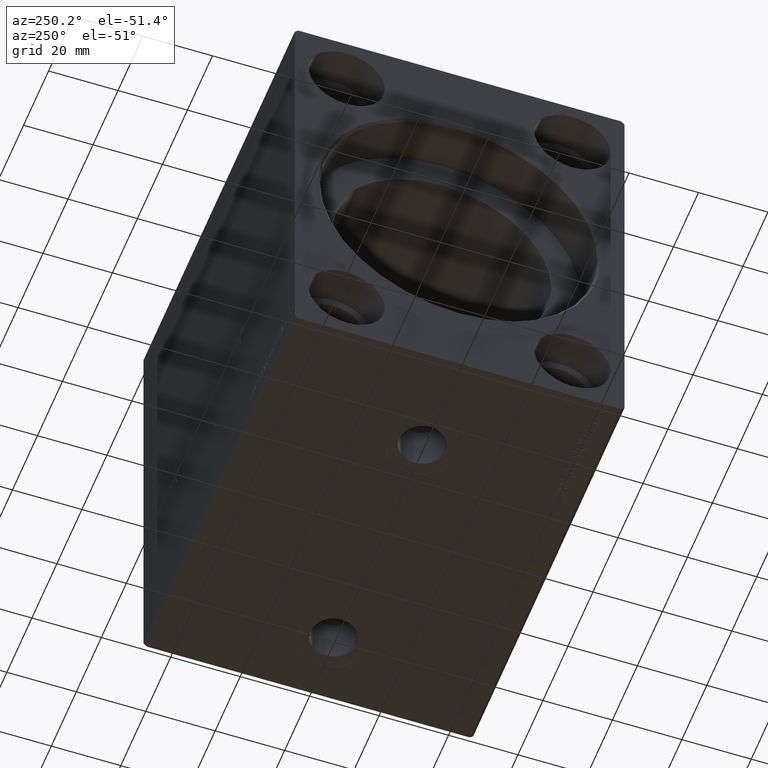
[diagram: clean part render]
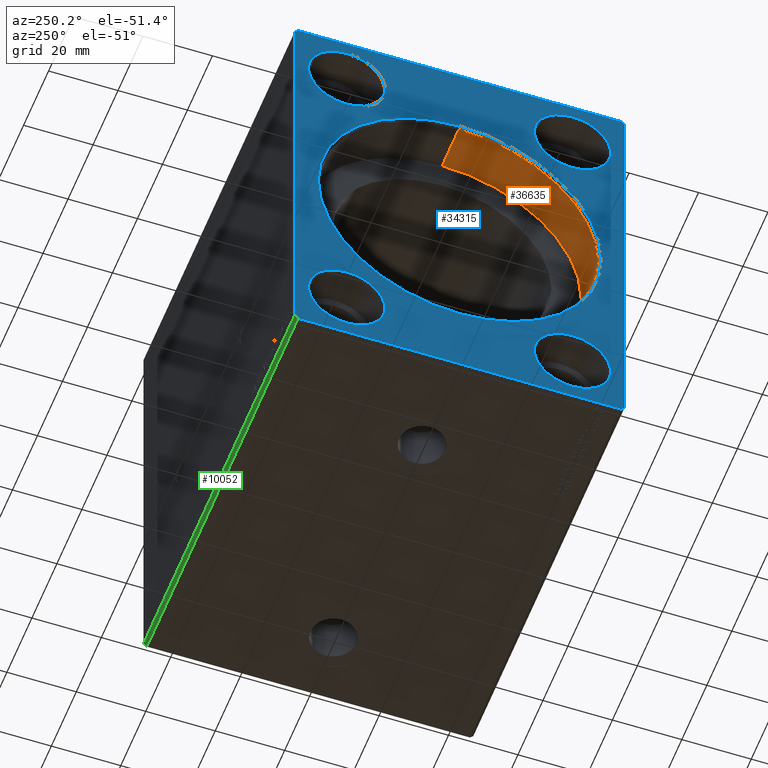
[diagram: same view with three faces highlighted in distinct colors, each labeled with its STEP entity id]
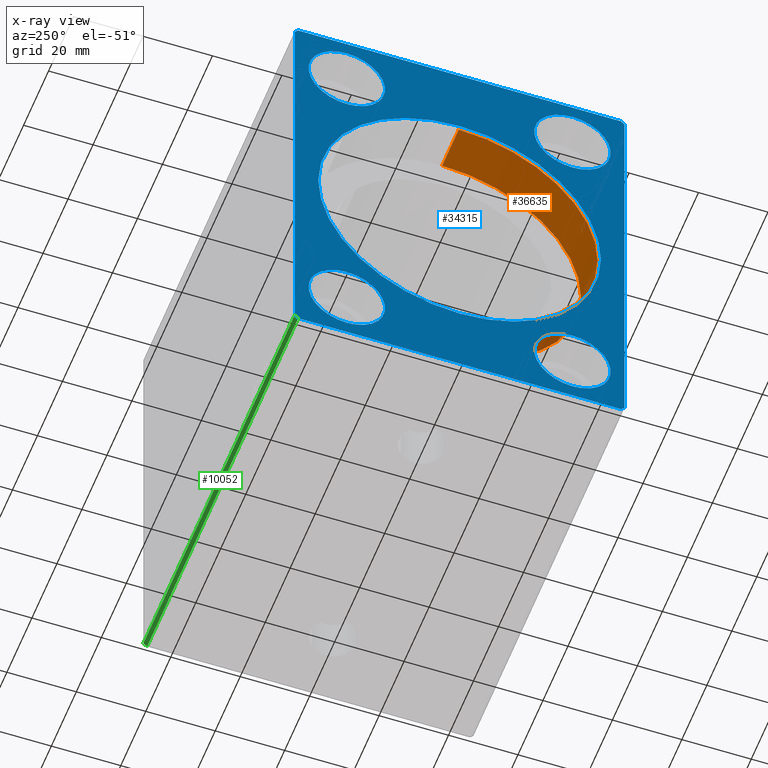
[diagram: x-ray of the same camera — body ghosted, the three highlighted faces saturated]
A machine part, auxiliary view with three faces highlighted in distinct colors.
The next image is the same camera in x-ray (body ghosted, the three faces saturated) — at least one of them is partly hidden behind the body in this view.
Their STEP definitions:

[orange] entity #36635 — the highlighted cylindrical surface (partial cylindrical patch) has radius 40 mm, axis along (-1, -0, -0).
#2499 = CARTESIAN_POINT ( 'NONE',  ( 0.7000000000000130562, 0.000000000000000000, 40.00000000000000000 ) ) ;
#3396 = CIRCLE ( 'NONE', #8219, 40.00000000000000000 ) ;
#3567 = DIRECTION ( 'NONE',  ( 0.000000000000000000, 0.000000000000000000, 1.000000000000000000 ) ) ;
#4432 = DIRECTION ( 'NONE',  ( -1.000000000000000000, 0.000000000000000000, 0.000000000000000000 ) ) ;
#5234 = ORIENTED_EDGE ( 'NONE', *, *, #10149, .T. ) ;
#8219 = AXIS2_PLACEMENT_3D ( 'NONE', #19178, #15964, #23042 ) ;
#10149 = EDGE_CURVE ( 'NONE', #22025, #37024, #39539, .T. ) ;
#10596 = VERTEX_POINT ( 'NONE', #2499 ) ;
#10897 = EDGE_CURVE ( 'NONE', #26904, #10596, #41941, .T. ) ;
#13151 = ORIENTED_EDGE ( 'NONE', *, *, #10897, .F. ) ;
#15964 = DIRECTION ( 'NONE',  ( -1.000000000000000000, 0.000000000000000000, 0.000000000000000000 ) ) ;
#16160 = CARTESIAN_POINT ( 'NONE',  ( 14.00000000000000000, 0.000000000000000000, 40.00000000000000000 ) ) ;
#16341 = CARTESIAN_POINT ( 'NONE',  ( 14.00000000000000000, 4.898587196589413026E-15, -40.00000000000000000 ) ) ;
#16883 = FACE_OUTER_BOUND ( 'NONE', #39180, .T. ) ;
#18106 = CARTESIAN_POINT ( 'NONE',  ( 14.00000000000000000, 4.898587196589413026E-15, -40.00000000000000000 ) ) ;
#19178 = CARTESIAN_POINT ( 'NONE',  ( 14.00000000000000000, 0.000000000000000000, 0.000000000000000000 ) ) ;
#19324 = VECTOR ( 'NONE', #29260, 1000.000000000000000 ) ;
#19640 = CARTESIAN_POINT ( 'NONE',  ( 0.7000000000000130562, 4.898587196589413026E-15, -40.00000000000000000 ) ) ;
#20111 = CARTESIAN_POINT ( 'NONE',  ( 14.00000000000000000, 0.000000000000000000, 0.000000000000000000 ) ) ;
#20319 = CYLINDRICAL_SURFACE ( 'NONE', #41902, 40.00000000000000000 ) ;
#22025 = VERTEX_POINT ( 'NONE', #18106 ) ;
#22026 = VECTOR ( 'NONE', #36735, 1000.000000000000000 ) ;
#22105 = ORIENTED_EDGE ( 'NONE', *, *, #40852, .T. ) ;
#23042 = DIRECTION ( 'NONE',  ( 0.000000000000000000, 0.000000000000000000, 1.000000000000000000 ) ) ;
#23564 = CARTESIAN_POINT ( 'NONE',  ( 0.7000000000000130562, 0.000000000000000000, 0.000000000000000000 ) ) ;
#26756 = DIRECTION ( 'NONE',  ( -1.000000000000000000, -0.000000000000000000, -0.000000000000000000 ) ) ;
#26794 = CIRCLE ( 'NONE', #40511, 40.00000000000000000 ) ;
#26904 = VERTEX_POINT ( 'NONE', #39049 ) ;
#27198 = DIRECTION ( 'NONE',  ( 0.000000000000000000, 0.000000000000000000, -1.000000000000000000 ) ) ;
#29260 = DIRECTION ( 'NONE',  ( -1.000000000000000000, -0.000000000000000000, -0.000000000000000000 ) ) ;
#32843 = ORIENTED_EDGE ( 'NONE', *, *, #38093, .F. ) ;
#36635 = ADVANCED_FACE ( 'NONE', ( #16883 ), #20319, .F. ) ;
#36735 = DIRECTION ( 'NONE',  ( -1.000000000000000000, -0.000000000000000000, -0.000000000000000000 ) ) ;
#37024 = VERTEX_POINT ( 'NONE', #19640 ) ;
#38093 = EDGE_CURVE ( 'NONE', #22025, #26904, #3396, .T. ) ;
#39049 = CARTESIAN_POINT ( 'NONE',  ( 14.00000000000000000, 0.000000000000000000, 40.00000000000000000 ) ) ;
#39180 = EDGE_LOOP ( 'NONE', ( #32843, #5234, #22105, #13151 ) ) ;
#39539 = LINE ( 'NONE', #16341, #22026 ) ;
#40511 = AXIS2_PLACEMENT_3D ( 'NONE', #23564, #4432, #27198 ) ;
#40852 = EDGE_CURVE ( 'NONE', #37024, #10596, #26794, .T. ) ;
#41902 = AXIS2_PLACEMENT_3D ( 'NONE', #20111, #26756, #3567 ) ;
#41941 = LINE ( 'NONE', #16160, #19324 ) ;

[blue] entity #34315 — the highlighted planar face has unit normal (1, 0, 0).
#11 = ORIENTED_EDGE ( 'NONE', *, *, #10098, .T. ) ;
#48 = CIRCLE ( 'NONE', #28796, 10.99999999999999645 ) ;
#254 = LINE ( 'NONE', #22599, #31197 ) ;
#302 = CARTESIAN_POINT ( 'NONE',  ( 0.000000000000000000, -32.50000000000000000, -47.50000000000000000 ) ) ;
#457 = CIRCLE ( 'NONE', #40934, 40.70000000000001705 ) ;
#639 = CARTESIAN_POINT ( 'NONE',  ( 0.000000000000000000, 0.000000000000000000, 0.000000000000000000 ) ) ;
#1202 = VERTEX_POINT ( 'NONE', #32576 ) ;
#1806 = ORIENTED_EDGE ( 'NONE', *, *, #31559, .F. ) ;
#1816 = CARTESIAN_POINT ( 'NONE',  ( 0.000000000000000000, 0.000000000000000000, 0.000000000000000000 ) ) ;
#1925 = CARTESIAN_POINT ( 'NONE',  ( 0.000000000000000000, -47.49999999999999289, -61.50000000000001421 ) ) ;
#1927 = ORIENTED_EDGE ( 'NONE', *, *, #24521, .F. ) ;
#2454 = VERTEX_POINT ( 'NONE', #7151 ) ;
#2473 = LINE ( 'NONE', #38350, #15266 ) ;
#2591 = CARTESIAN_POINT ( 'NONE',  ( 0.000000000000000000, -46.50000000000001421, 62.49999999999997868 ) ) ;
#2634 = LINE ( 'NONE', #11882, #31567 ) ;
#2798 = AXIS2_PLACEMENT_3D ( 'NONE', #18849, #41824, #38609 ) ;
#2817 = EDGE_CURVE ( 'NONE', #14991, #35058, #34230, .T. ) ;
#3081 = CARTESIAN_POINT ( 'NONE',  ( 0.000000000000000000, 46.50000000000000000, 62.49999999999998579 ) ) ;
#3225 = FACE_BOUND ( 'NONE', #9567, .T. ) ;
#3333 = EDGE_CURVE ( 'NONE', #29966, #10995, #2634, .T. ) ;
#3859 = FACE_BOUND ( 'NONE', #9616, .T. ) ;
#3888 = CARTESIAN_POINT ( 'NONE',  ( 0.000000000000000000, 47.50000000000001421, -61.50000000000001421 ) ) ;
#4020 = EDGE_CURVE ( 'NONE', #4409, #29110, #36666, .T. ) ;
#4409 = VERTEX_POINT ( 'NONE', #2591 ) ;
#5026 = AXIS2_PLACEMENT_3D ( 'NONE', #302, #32955, #42200 ) ;
#6453 = PLANE ( 'NONE',  #28636 ) ;
#6943 = VERTEX_POINT ( 'NONE', #9321 ) ;
#6946 = DIRECTION ( 'NONE',  ( 0.000000000000000000, 0.000000000000000000, -1.000000000000000000 ) ) ;
#6988 = EDGE_CURVE ( 'NONE', #35058, #14991, #17124, .T. ) ;
#7082 = FACE_BOUND ( 'NONE', #22590, .T. ) ;
#7138 = AXIS2_PLACEMENT_3D ( 'NONE', #39600, #36373, #26485 ) ;
#7151 = CARTESIAN_POINT ( 'NONE',  ( 0.000000000000000000, -46.50000000000000000, -62.50000000000001421 ) ) ;
#7218 = ORIENTED_EDGE ( 'NONE', *, *, #29298, .F. ) ;
#7430 = CARTESIAN_POINT ( 'NONE',  ( 0.000000000000000000, 47.50000000000001421, -61.50000000000001421 ) ) ;
#7691 = CARTESIAN_POINT ( 'NONE',  ( 0.000000000000000000, 0.000000000000000000, 40.70000000000001705 ) ) ;
#8057 = EDGE_CURVE ( 'NONE', #16515, #8357, #13061, .T. ) ;
#8357 = VERTEX_POINT ( 'NONE', #36977 ) ;
#8439 = CARTESIAN_POINT ( 'NONE',  ( 0.000000000000000000, -32.50000000000000000, 58.50000000000000000 ) ) ;
#8671 = VERTEX_POINT ( 'NONE', #35669 ) ;
#8917 = CARTESIAN_POINT ( 'NONE',  ( 0.000000000000000000, 47.50000000000000000, 61.49999999999998579 ) ) ;
#9167 = DIRECTION ( 'NONE',  ( 0.000000000000000000, -0.7071067811865474617, 0.7071067811865474617 ) ) ;
#9267 = ORIENTED_EDGE ( 'NONE', *, *, #31998, .T. ) ;
#9321 = CARTESIAN_POINT ( 'NONE',  ( 0.000000000000000000, -47.49999999999999289, -61.50000000000001421 ) ) ;
#9377 = CARTESIAN_POINT ( 'NONE',  ( 0.000000000000000000, 32.50000000000000000, 36.50000000000000711 ) ) ;
#9567 = EDGE_LOOP ( 'NONE', ( #28337, #21479 ) ) ;
#9609 = CARTESIAN_POINT ( 'NONE',  ( 0.000000000000000000, 46.50000000000000000, -62.50000000000000000 ) ) ;
#9616 = EDGE_LOOP ( 'NONE', ( #37590, #31442 ) ) ;
#9732 = VERTEX_POINT ( 'NONE', #35158 ) ;
#10098 = EDGE_CURVE ( 'NONE', #33511, #34052, #37099, .T. ) ;
#10995 = VERTEX_POINT ( 'NONE', #3888 ) ;
#11382 = LINE ( 'NONE', #1925, #13333 ) ;
#11882 = CARTESIAN_POINT ( 'NONE',  ( 0.000000000000000000, 46.50000000000000000, -62.50000000000000000 ) ) ;
#12391 = CIRCLE ( 'NONE', #2798, 10.99999999999999645 ) ;
#12567 = DIRECTION ( 'NONE',  ( 0.000000000000000000, 1.000000000000000000, 1.492235248152092278E-16 ) ) ;
#12904 = DIRECTION ( 'NONE',  ( 0.000000000000000000, 0.000000000000000000, -1.000000000000000000 ) ) ;
#13061 = CIRCLE ( 'NONE', #24708, 10.99999999999999645 ) ;
#13178 = CARTESIAN_POINT ( 'NONE',  ( 0.000000000000000000, -32.50000000000000000, 47.50000000000000000 ) ) ;
#13333 = VECTOR ( 'NONE', #24483, 1000.000000000000114 ) ;
#14991 = VERTEX_POINT ( 'NONE', #8439 ) ;
#15266 = VECTOR ( 'NONE', #12567, 1000.000000000000000 ) ;
#15530 = DIRECTION ( 'NONE',  ( 0.000000000000000000, 0.7071067811865574537, 0.7071067811865376918 ) ) ;
#15633 = EDGE_CURVE ( 'NONE', #2454, #29966, #2473, .T. ) ;
#16403 = DIRECTION ( 'NONE',  ( -1.000000000000000000, 0.000000000000000000, 0.000000000000000000 ) ) ;
#16482 = LINE ( 'NONE', #7430, #33338 ) ;
#16515 = VERTEX_POINT ( 'NONE', #9377 ) ;
#16580 = CARTESIAN_POINT ( 'NONE',  ( 0.000000000000000000, 46.50000000000000000, 62.49999999999998579 ) ) ;
#16902 = DIRECTION ( 'NONE',  ( 0.000000000000000000, -0.7071067811865474617, -0.7071067811865474617 ) ) ;
#16930 = EDGE_CURVE ( 'NONE', #33807, #8671, #20112, .T. ) ;
#16964 = FACE_BOUND ( 'NONE', #39760, .T. ) ;
#17124 = CIRCLE ( 'NONE', #39808, 10.99999999999999645 ) ;
#17189 = ORIENTED_EDGE ( 'NONE', *, *, #36593, .T. ) ;
#17500 = AXIS2_PLACEMENT_3D ( 'NONE', #30118, #36156, #20453 ) ;
#18648 = CARTESIAN_POINT ( 'NONE',  ( 0.000000000000000000, -47.50000000000001421, 61.49999999999997868 ) ) ;
#18849 = CARTESIAN_POINT ( 'NONE',  ( 0.000000000000000000, 32.50000000000000000, 47.50000000000000000 ) ) ;
#19268 = VECTOR ( 'NONE', #20224, 1000.000000000000000 ) ;
#19912 = CARTESIAN_POINT ( 'NONE',  ( 0.000000000000000000, -32.50000000000000000, -36.50000000000000711 ) ) ;
#20112 = CIRCLE ( 'NONE', #5026, 10.99999999999999645 ) ;
#20224 = DIRECTION ( 'NONE',  ( 0.000000000000000000, -1.000000000000000000, -7.461176240760460157E-17 ) ) ;
#20453 = DIRECTION ( 'NONE',  ( 0.000000000000000000, 0.000000000000000000, -1.000000000000000000 ) ) ;
#21479 = ORIENTED_EDGE ( 'NONE', *, *, #27453, .T. ) ;
#21774 = ORIENTED_EDGE ( 'NONE', *, *, #4020, .F. ) ;
#22504 = DIRECTION ( 'NONE',  ( -1.000000000000000000, 0.000000000000000000, 0.000000000000000000 ) ) ;
#22590 = EDGE_LOOP ( 'NONE', ( #11, #9267 ) ) ;
#22599 = CARTESIAN_POINT ( 'NONE',  ( 0.000000000000000000, -47.50000000000001421, 61.49999999999997868 ) ) ;
#22799 = DIRECTION ( 'NONE',  ( 1.000000000000000000, -0.000000000000000000, -0.000000000000000000 ) ) ;
#23310 = ORIENTED_EDGE ( 'NONE', *, *, #25039, .F. ) ;
#23857 = EDGE_CURVE ( 'NONE', #9732, #1202, #25658, .T. ) ;
#24483 = DIRECTION ( 'NONE',  ( 0.000000000000000000, 0.7071067811865451302, -0.7071067811865500152 ) ) ;
#24521 = EDGE_CURVE ( 'NONE', #6943, #2454, #11382, .T. ) ;
#24708 = AXIS2_PLACEMENT_3D ( 'NONE', #41704, #22799, #42345 ) ;
#25039 = EDGE_CURVE ( 'NONE', #29110, #6943, #254, .T. ) ;
#25658 = CIRCLE ( 'NONE', #7138, 10.99999999999999645 ) ;
#26351 = DIRECTION ( 'NONE',  ( 0.000000000000000000, -1.128275431529630729E-16, 1.000000000000000000 ) ) ;
#26485 = DIRECTION ( 'NONE',  ( 0.000000000000000000, 0.000000000000000000, 1.000000000000000000 ) ) ;
#26489 = DIRECTION ( 'NONE',  ( 0.000000000000000000, 0.000000000000000000, 1.000000000000000000 ) ) ;
#26561 = CARTESIAN_POINT ( 'NONE',  ( 0.000000000000000000, -46.50000000000001421, 62.49999999999997868 ) ) ;
#26874 = LINE ( 'NONE', #16580, #19268 ) ;
#27298 = ORIENTED_EDGE ( 'NONE', *, *, #15633, .F. ) ;
#27453 = EDGE_CURVE ( 'NONE', #8671, #33807, #35366, .T. ) ;
#27546 = EDGE_LOOP ( 'NONE', ( #1806, #7218, #35575, #27298, #1927, #23310, #21774, #32281 ) ) ;
#27860 = VECTOR ( 'NONE', #9167, 1000.000000000000114 ) ;
#28337 = ORIENTED_EDGE ( 'NONE', *, *, #16930, .T. ) ;
#28636 = AXIS2_PLACEMENT_3D ( 'NONE', #639, #36728, #36303 ) ;
#28796 = AXIS2_PLACEMENT_3D ( 'NONE', #38830, #22504, #35605 ) ;
#29110 = VERTEX_POINT ( 'NONE', #18648 ) ;
#29254 = DIRECTION ( 'NONE',  ( 0.000000000000000000, 1.692413147294445970E-16, -1.000000000000000000 ) ) ;
#29298 = EDGE_CURVE ( 'NONE', #10995, #37657, #16482, .T. ) ;
#29966 = VERTEX_POINT ( 'NONE', #9609 ) ;
#30064 = FACE_BOUND ( 'NONE', #31299, .T. ) ;
#30118 = CARTESIAN_POINT ( 'NONE',  ( 0.000000000000000000, -32.50000000000000000, -47.50000000000000000 ) ) ;
#30789 = AXIS2_PLACEMENT_3D ( 'NONE', #39087, #32648, #35874 ) ;
#31197 = VECTOR ( 'NONE', #29254, 1000.000000000000000 ) ;
#31254 = DIRECTION ( 'NONE',  ( 1.000000000000000000, 0.000000000000000000, 0.000000000000000000 ) ) ;
#31299 = EDGE_LOOP ( 'NONE', ( #17189, #40924 ) ) ;
#31442 = ORIENTED_EDGE ( 'NONE', *, *, #6988, .F. ) ;
#31559 = EDGE_CURVE ( 'NONE', #37657, #34717, #37975, .T. ) ;
#31567 = VECTOR ( 'NONE', #15530, 999.9999999999998863 ) ;
#31998 = EDGE_CURVE ( 'NONE', #34052, #33511, #457, .T. ) ;
#32281 = ORIENTED_EDGE ( 'NONE', *, *, #37219, .F. ) ;
#32576 = CARTESIAN_POINT ( 'NONE',  ( 0.000000000000000000, 32.50000000000000000, -36.50000000000000711 ) ) ;
#32648 = DIRECTION ( 'NONE',  ( -1.000000000000000000, 0.000000000000000000, 0.000000000000000000 ) ) ;
#32955 = DIRECTION ( 'NONE',  ( 1.000000000000000000, -0.000000000000000000, -0.000000000000000000 ) ) ;
#32975 = ORIENTED_EDGE ( 'NONE', *, *, #37431, .F. ) ;
#33338 = VECTOR ( 'NONE', #26351, 1000.000000000000000 ) ;
#33511 = VERTEX_POINT ( 'NONE', #7691 ) ;
#33807 = VERTEX_POINT ( 'NONE', #19912 ) ;
#34052 = VERTEX_POINT ( 'NONE', #35987 ) ;
#34230 = CIRCLE ( 'NONE', #30789, 10.99999999999999645 ) ;
#34315 = ADVANCED_FACE ( 'NONE', ( #3859, #16964, #7082, #39325, #3225, #30064 ), #6453, .F. ) ;
#34542 = CARTESIAN_POINT ( 'NONE',  ( 0.000000000000000000, 47.50000000000000000, 61.49999999999998579 ) ) ;
#34607 = ORIENTED_EDGE ( 'NONE', *, *, #23857, .F. ) ;
#34717 = VERTEX_POINT ( 'NONE', #3081 ) ;
#35058 = VERTEX_POINT ( 'NONE', #40377 ) ;
#35059 = AXIS2_PLACEMENT_3D ( 'NONE', #1816, #31254, #12904 ) ;
#35158 = CARTESIAN_POINT ( 'NONE',  ( 0.000000000000000000, 32.50000000000000000, -58.50000000000000000 ) ) ;
#35366 = CIRCLE ( 'NONE', #17500, 10.99999999999999645 ) ;
#35575 = ORIENTED_EDGE ( 'NONE', *, *, #3333, .F. ) ;
#35605 = DIRECTION ( 'NONE',  ( 0.000000000000000000, 0.000000000000000000, 1.000000000000000000 ) ) ;
#35669 = CARTESIAN_POINT ( 'NONE',  ( 0.000000000000000000, -32.50000000000000000, -58.50000000000000000 ) ) ;
#35757 = DIRECTION ( 'NONE',  ( 1.000000000000000000, 0.000000000000000000, 0.000000000000000000 ) ) ;
#35874 = DIRECTION ( 'NONE',  ( 0.000000000000000000, 0.000000000000000000, 1.000000000000000000 ) ) ;
#35987 = CARTESIAN_POINT ( 'NONE',  ( 0.000000000000000000, 4.984312472529728892E-15, -40.70000000000001705 ) ) ;
#36156 = DIRECTION ( 'NONE',  ( 1.000000000000000000, -0.000000000000000000, -0.000000000000000000 ) ) ;
#36303 = DIRECTION ( 'NONE',  ( 0.000000000000000000, 0.000000000000000000, -1.000000000000000000 ) ) ;
#36373 = DIRECTION ( 'NONE',  ( -1.000000000000000000, 0.000000000000000000, 0.000000000000000000 ) ) ;
#36593 = EDGE_CURVE ( 'NONE', #8357, #16515, #12391, .T. ) ;
#36666 = LINE ( 'NONE', #26561, #41098 ) ;
#36728 = DIRECTION ( 'NONE',  ( 1.000000000000000000, 0.000000000000000000, 0.000000000000000000 ) ) ;
#36977 = CARTESIAN_POINT ( 'NONE',  ( 0.000000000000000000, 32.50000000000000000, 58.50000000000000000 ) ) ;
#37099 = CIRCLE ( 'NONE', #35059, 40.70000000000001705 ) ;
#37219 = EDGE_CURVE ( 'NONE', #34717, #4409, #26874, .T. ) ;
#37431 = EDGE_CURVE ( 'NONE', #1202, #9732, #48, .T. ) ;
#37590 = ORIENTED_EDGE ( 'NONE', *, *, #2817, .F. ) ;
#37657 = VERTEX_POINT ( 'NONE', #8917 ) ;
#37975 = LINE ( 'NONE', #34542, #27860 ) ;
#38350 = CARTESIAN_POINT ( 'NONE',  ( 0.000000000000000000, -46.50000000000000000, -62.50000000000001421 ) ) ;
#38609 = DIRECTION ( 'NONE',  ( 0.000000000000000000, 0.000000000000000000, -1.000000000000000000 ) ) ;
#38830 = CARTESIAN_POINT ( 'NONE',  ( 0.000000000000000000, 32.50000000000000000, -47.50000000000000000 ) ) ;
#38974 = CARTESIAN_POINT ( 'NONE',  ( 0.000000000000000000, 0.000000000000000000, 0.000000000000000000 ) ) ;
#39087 = CARTESIAN_POINT ( 'NONE',  ( 0.000000000000000000, -32.50000000000000000, 47.50000000000000000 ) ) ;
#39325 = FACE_OUTER_BOUND ( 'NONE', #27546, .T. ) ;
#39600 = CARTESIAN_POINT ( 'NONE',  ( 0.000000000000000000, 32.50000000000000000, -47.50000000000000000 ) ) ;
#39760 = EDGE_LOOP ( 'NONE', ( #32975, #34607 ) ) ;
#39808 = AXIS2_PLACEMENT_3D ( 'NONE', #13178, #16403, #26489 ) ;
#40377 = CARTESIAN_POINT ( 'NONE',  ( 0.000000000000000000, -32.50000000000000000, 36.50000000000000711 ) ) ;
#40924 = ORIENTED_EDGE ( 'NONE', *, *, #8057, .T. ) ;
#40934 = AXIS2_PLACEMENT_3D ( 'NONE', #38974, #35757, #6946 ) ;
#41098 = VECTOR ( 'NONE', #16902, 1000.000000000000114 ) ;
#41704 = CARTESIAN_POINT ( 'NONE',  ( 0.000000000000000000, 32.50000000000000000, 47.50000000000000000 ) ) ;
#41824 = DIRECTION ( 'NONE',  ( 1.000000000000000000, -0.000000000000000000, -0.000000000000000000 ) ) ;
#42200 = DIRECTION ( 'NONE',  ( 0.000000000000000000, 0.000000000000000000, -1.000000000000000000 ) ) ;
#42345 = DIRECTION ( 'NONE',  ( 0.000000000000000000, 0.000000000000000000, -1.000000000000000000 ) ) ;

[green] entity #10052 — the highlighted planar face has unit normal (0, -0.7071, 0.7071).
#2634 = LINE ( 'NONE', #11882, #31567 ) ;
#3333 = EDGE_CURVE ( 'NONE', #29966, #10995, #2634, .T. ) ;
#3888 = CARTESIAN_POINT ( 'NONE',  ( 0.000000000000000000, 47.50000000000001421, -61.50000000000001421 ) ) ;
#4297 = EDGE_LOOP ( 'NONE', ( #24913, #24223, #36762, #27434 ) ) ;
#4411 = EDGE_CURVE ( 'NONE', #39540, #10995, #35469, .T. ) ;
#6583 = LINE ( 'NONE', #13873, #21324 ) ;
#6617 = CARTESIAN_POINT ( 'NONE',  ( 121.0000000000000000, 46.50000000000000000, -62.50000000000000000 ) ) ;
#9609 = CARTESIAN_POINT ( 'NONE',  ( 0.000000000000000000, 46.50000000000000000, -62.50000000000000000 ) ) ;
#10052 = ADVANCED_FACE ( 'NONE', ( #11044 ), #30814, .F. ) ;
#10995 = VERTEX_POINT ( 'NONE', #3888 ) ;
#11044 = FACE_OUTER_BOUND ( 'NONE', #4297, .T. ) ;
#11266 = DIRECTION ( 'NONE',  ( 0.000000000000000000, -0.7071067811865573427, -0.7071067811865378028 ) ) ;
#11714 = AXIS2_PLACEMENT_3D ( 'NONE', #14488, #20502, #11266 ) ;
#11882 = CARTESIAN_POINT ( 'NONE',  ( 0.000000000000000000, 46.50000000000000000, -62.50000000000000000 ) ) ;
#12253 = CARTESIAN_POINT ( 'NONE',  ( 121.0000000000000000, 47.50000000000001421, -61.50000000000001421 ) ) ;
#13740 = LINE ( 'NONE', #32878, #26480 ) ;
#13873 = CARTESIAN_POINT ( 'NONE',  ( 121.0000000000000000, 46.50000000000000000, -62.50000000000000000 ) ) ;
#14488 = CARTESIAN_POINT ( 'NONE',  ( 121.0000000000000000, 46.50000000000000000, -62.50000000000000000 ) ) ;
#15530 = DIRECTION ( 'NONE',  ( 0.000000000000000000, 0.7071067811865574537, 0.7071067811865376918 ) ) ;
#18922 = DIRECTION ( 'NONE',  ( -1.000000000000000000, -0.000000000000000000, -0.000000000000000000 ) ) ;
#20502 = DIRECTION ( 'NONE',  ( 0.000000000000000000, -0.7071067811865378028, 0.7071067811865573427 ) ) ;
#21324 = VECTOR ( 'NONE', #40086, 999.9999999999998863 ) ;
#23000 = DIRECTION ( 'NONE',  ( -1.000000000000000000, -0.000000000000000000, -0.000000000000000000 ) ) ;
#24223 = ORIENTED_EDGE ( 'NONE', *, *, #4411, .F. ) ;
#24913 = ORIENTED_EDGE ( 'NONE', *, *, #3333, .T. ) ;
#25134 = CARTESIAN_POINT ( 'NONE',  ( 121.0000000000000000, 47.50000000000001421, -61.50000000000001421 ) ) ;
#26480 = VECTOR ( 'NONE', #23000, 1000.000000000000000 ) ;
#27434 = ORIENTED_EDGE ( 'NONE', *, *, #30812, .T. ) ;
#28707 = VERTEX_POINT ( 'NONE', #6617 ) ;
#29966 = VERTEX_POINT ( 'NONE', #9609 ) ;
#30812 = EDGE_CURVE ( 'NONE', #28707, #29966, #13740, .T. ) ;
#30814 = PLANE ( 'NONE',  #11714 ) ;
#31567 = VECTOR ( 'NONE', #15530, 999.9999999999998863 ) ;
#32878 = CARTESIAN_POINT ( 'NONE',  ( 121.0000000000000000, 46.50000000000000000, -62.50000000000000000 ) ) ;
#35469 = LINE ( 'NONE', #12253, #38365 ) ;
#36762 = ORIENTED_EDGE ( 'NONE', *, *, #36774, .F. ) ;
#36774 = EDGE_CURVE ( 'NONE', #28707, #39540, #6583, .T. ) ;
#38365 = VECTOR ( 'NONE', #18922, 1000.000000000000000 ) ;
#39540 = VERTEX_POINT ( 'NONE', #25134 ) ;
#40086 = DIRECTION ( 'NONE',  ( 0.000000000000000000, 0.7071067811865574537, 0.7071067811865376918 ) ) ;